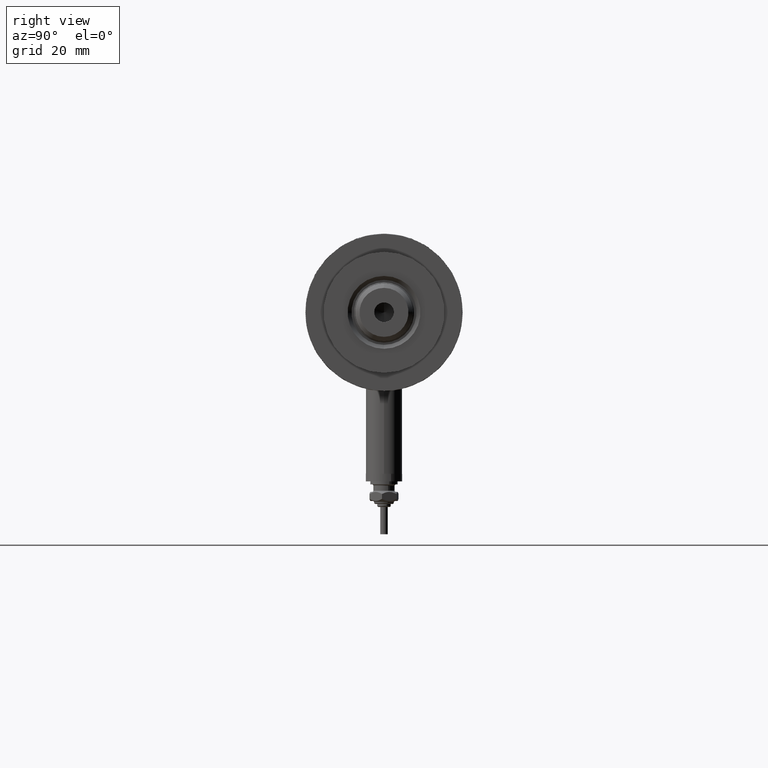
[diagram: clean part render]
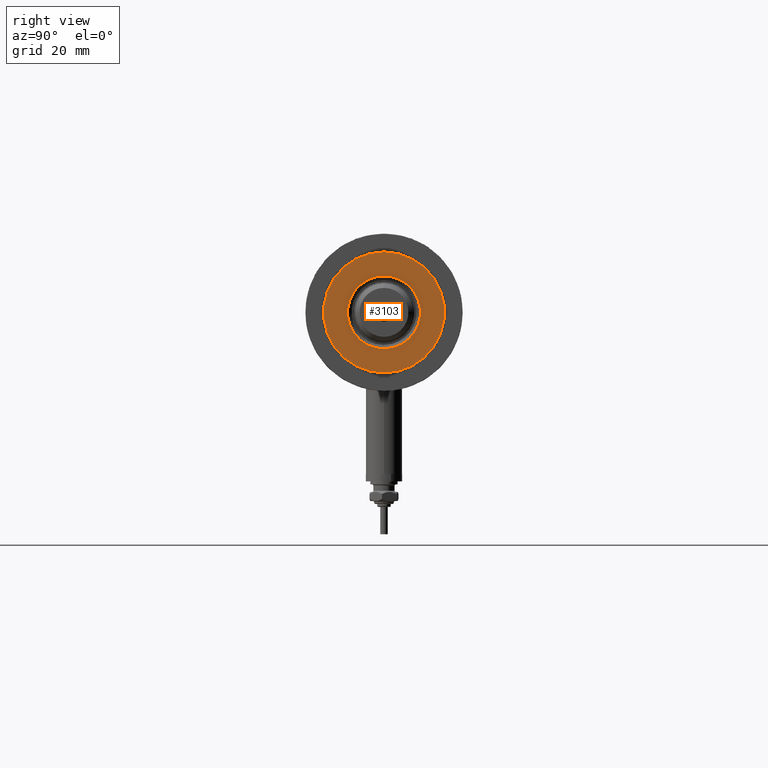
[diagram: same view with one face highlighted and labeled with its STEP entity id]
A machine part, right view. The second image highlights one B-rep face of the part: STEP entity #3103.
In plain terms, the highlighted planar face has unit normal (1, 0, -0).
Its self-contained STEP definition (entity closure, byte-faithful):
#250 = VERTEX_POINT ( 'NONE', #4255 ) ;
#276 = PLANE ( 'NONE',  #2913 ) ;
#469 = CARTESIAN_POINT ( 'NONE',  ( 0.000000000000000000, 0.000000000000000000, 33.50000000000000000 ) ) ;
#592 = CARTESIAN_POINT ( 'NONE',  ( -19.99999999999999645, 0.000000000000000000, 33.50000000000000000 ) ) ;
#789 = DIRECTION ( 'NONE',  ( 1.000000000000000000, 0.000000000000000000, -0.000000000000000000 ) ) ;
#846 = DIRECTION ( 'NONE',  ( 1.000000000000000000, 0.000000000000000000, 0.000000000000000000 ) ) ;
#874 = CARTESIAN_POINT ( 'NONE',  ( 0.000000000000000000, 0.000000000000000000, 33.50000000000000000 ) ) ;
#883 = DIRECTION ( 'NONE',  ( 0.000000000000000000, 0.000000000000000000, 1.000000000000000000 ) ) ;
#1093 = CIRCLE ( 'NONE', #3227, 12.05000000000000426 ) ;
#1202 = FACE_OUTER_BOUND ( 'NONE', #4130, .T. ) ;
#1403 = AXIS2_PLACEMENT_3D ( 'NONE', #6273, #2485, #3449 ) ;
#1535 = EDGE_LOOP ( 'NONE', ( #3601, #2204 ) ) ;
#1763 = VERTEX_POINT ( 'NONE', #5790 ) ;
#1970 = CARTESIAN_POINT ( 'NONE',  ( 0.000000000000000000, 0.000000000000000000, 33.50000000000000000 ) ) ;
#2204 = ORIENTED_EDGE ( 'NONE', *, *, #5708, .T. ) ;
#2214 = CIRCLE ( 'NONE', #5792, 19.99999999999999645 ) ;
#2425 = CIRCLE ( 'NONE', #1403, 12.05000000000000426 ) ;
#2435 = ORIENTED_EDGE ( 'NONE', *, *, #5029, .T. ) ;
#2485 = DIRECTION ( 'NONE',  ( -0.000000000000000000, -0.000000000000000000, -1.000000000000000000 ) ) ;
#2766 = DIRECTION ( 'NONE',  ( 0.000000000000000000, 0.000000000000000000, 1.000000000000000000 ) ) ;
#2833 = DIRECTION ( 'NONE',  ( 1.000000000000000000, 0.000000000000000000, 0.000000000000000000 ) ) ;
#2884 = VERTEX_POINT ( 'NONE', #6164 ) ;
#2913 = AXIS2_PLACEMENT_3D ( 'NONE', #3638, #2766, #789 ) ;
#2999 = VERTEX_POINT ( 'NONE', #592 ) ;
#3103 = ADVANCED_FACE ( 'NONE', ( #3211, #1202 ), #276, .T. ) ;
#3211 = FACE_BOUND ( 'NONE', #1535, .T. ) ;
#3227 = AXIS2_PLACEMENT_3D ( 'NONE', #1970, #4860, #6262 ) ;
#3449 = DIRECTION ( 'NONE',  ( 1.000000000000000000, 0.000000000000000000, 0.000000000000000000 ) ) ;
#3601 = ORIENTED_EDGE ( 'NONE', *, *, #4585, .T. ) ;
#3638 = CARTESIAN_POINT ( 'NONE',  ( 0.000000000000000000, 0.000000000000000000, 33.50000000000000000 ) ) ;
#3752 = AXIS2_PLACEMENT_3D ( 'NONE', #469, #883, #2833 ) ;
#4108 = ORIENTED_EDGE ( 'NONE', *, *, #4626, .T. ) ;
#4130 = EDGE_LOOP ( 'NONE', ( #4108, #2435 ) ) ;
#4255 = CARTESIAN_POINT ( 'NONE',  ( -12.05000000000000426, 1.475699392972560823E-15, 33.50000000000000000 ) ) ;
#4375 = DIRECTION ( 'NONE',  ( 0.000000000000000000, 0.000000000000000000, 1.000000000000000000 ) ) ;
#4585 = EDGE_CURVE ( 'NONE', #2884, #250, #1093, .T. ) ;
#4626 = EDGE_CURVE ( 'NONE', #2999, #1763, #4783, .T. ) ;
#4783 = CIRCLE ( 'NONE', #3752, 19.99999999999999645 ) ;
#4860 = DIRECTION ( 'NONE',  ( -0.000000000000000000, -0.000000000000000000, -1.000000000000000000 ) ) ;
#5029 = EDGE_CURVE ( 'NONE', #1763, #2999, #2214, .T. ) ;
#5708 = EDGE_CURVE ( 'NONE', #250, #2884, #2425, .T. ) ;
#5790 = CARTESIAN_POINT ( 'NONE',  ( 19.99999999999999645, 2.449293598294706119E-15, 33.50000000000000000 ) ) ;
#5792 = AXIS2_PLACEMENT_3D ( 'NONE', #874, #4375, #846 ) ;
#6164 = CARTESIAN_POINT ( 'NONE',  ( 12.05000000000000426, 0.000000000000000000, 33.50000000000000000 ) ) ;
#6262 = DIRECTION ( 'NONE',  ( 1.000000000000000000, 0.000000000000000000, 0.000000000000000000 ) ) ;
#6273 = CARTESIAN_POINT ( 'NONE',  ( 0.000000000000000000, 0.000000000000000000, 33.50000000000000000 ) ) ;